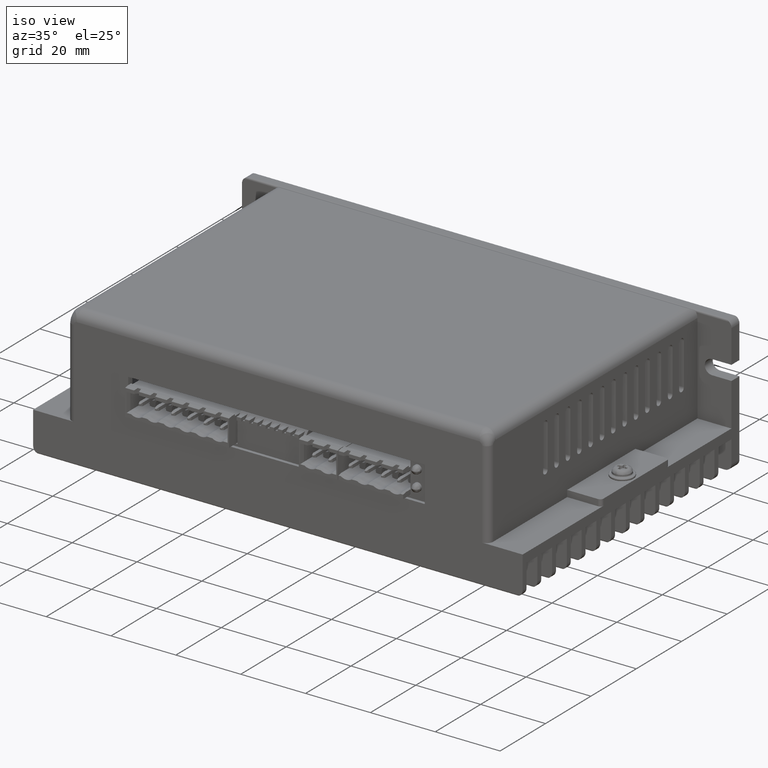
[diagram: clean part render]
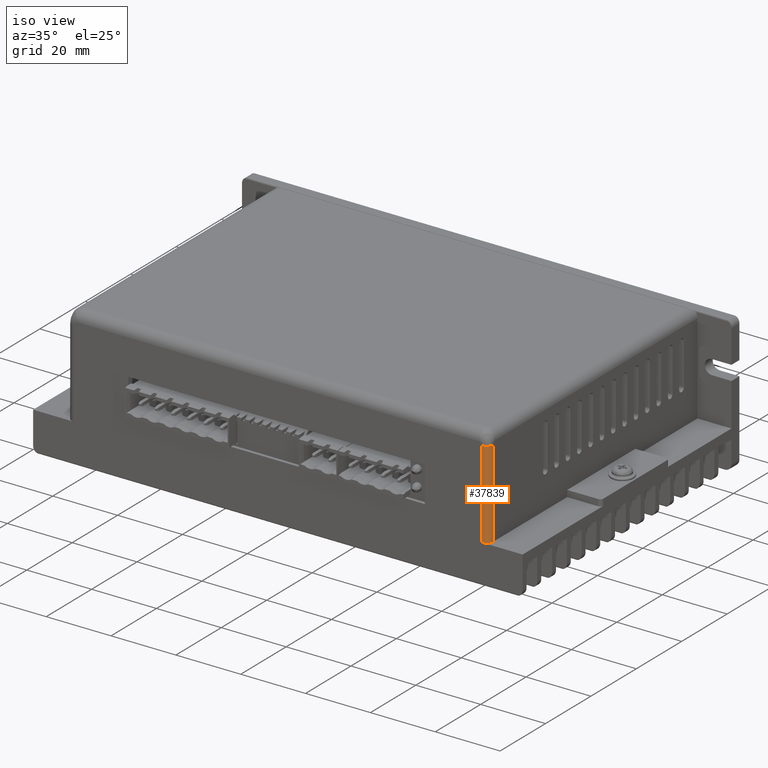
[diagram: same view with one face highlighted and labeled with its STEP entity id]
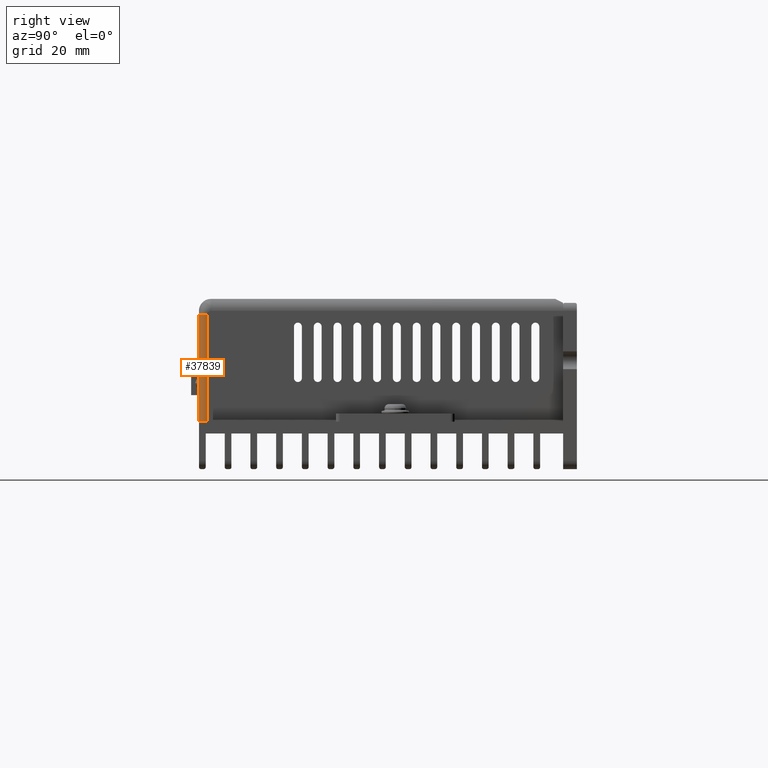
[diagram: same view with one face highlighted and labeled with its STEP entity id]
A machine part, iso view. The second image highlights one B-rep face of the part: STEP entity #37839.
A second angle (right view) of the same face is appended — the face is thin or edge-on in the first view.
In plain terms, the highlighted cylindrical surface (edge-blend (fillet) strip) has radius 2 mm, axis along (-0, 0, 1).
Its self-contained STEP definition (entity closure, byte-faithful):
#867 = VERTEX_POINT ( 'NONE', #36143 ) ;
#1121 = CARTESIAN_POINT ( 'NONE',  ( 2.480314960629923100, -1.751968503937037200, -1.220472440944881500 ) ) ;
#2032 = DIRECTION ( 'NONE',  ( 4.336808689942013300E-016, -0.0000000000000000000, -1.000000000000000000 ) ) ;
#2311 = CARTESIAN_POINT ( 'NONE',  ( 2.559055118110248600, -1.751968503937015400, -0.1574803149606861200 ) ) ;
#3708 = CARTESIAN_POINT ( 'NONE',  ( 2.559055118110248600, -1.751968503937015400, -0.1574803149606861200 ) ) ;
#3760 = EDGE_CURVE ( 'NONE', #10349, #867, #16294, .T. ) ;
#5649 = DIRECTION ( 'NONE',  ( -4.336808689942013300E-016, 0.0000000000000000000, 1.000000000000000000 ) ) ;
#7509 = CARTESIAN_POINT ( 'NONE',  ( 2.528704466139725300, -1.814934397039282200, -0.1574803149606677200 ) ) ;
#10349 = VERTEX_POINT ( 'NONE', #2311 ) ;
#11800 = CARTESIAN_POINT ( 'NONE',  ( 2.480314960629838700, -1.830708661417385100, -0.1574803149606267500 ) ) ;
#14698 = B_SPLINE_CURVE_WITH_KNOTS ( 'NONE', 3,
 ( #3708, #54733, #54541, #33914, #33163, #7509, #37479, #42176, #46107, #11800 ),
 .UNSPECIFIED., .F., .F.,
 ( 4, 2, 2, 2, 4 ),
 ( 0.0000000000000000000, 0.2500000000000000000, 0.5000000000000000000, 0.7500000000000000000, 1.000000000000000000 ),
 .UNSPECIFIED. ) ;
#14977 = ORIENTED_EDGE ( 'NONE', *, *, #33588, .F. ) ;
#15517 = DIRECTION ( 'NONE',  ( -0.0000000000000000000, -0.0000000000000000000, 1.000000000000000000 ) ) ;
#16294 = LINE ( 'NONE', #38312, #24326 ) ;
#21585 = DIRECTION ( 'NONE',  ( 0.0000000000000000000, 0.0000000000000000000, -1.000000000000000000 ) ) ;
#22095 = VERTEX_POINT ( 'NONE', #35696 ) ;
#23407 = DIRECTION ( 'NONE',  ( 1.000000000000000000, 0.0000000000000000000, 0.0000000000000000000 ) ) ;
#24326 = VECTOR ( 'NONE', #21585, 39.37007874015748100 ) ;
#24491 = CIRCLE ( 'NONE', #52631, 0.07874015748031502900 ) ;
#32323 = CARTESIAN_POINT ( 'NONE',  ( 2.480314960629923100, -1.830708661417352000, -1.220472440944881500 ) ) ;
#33163 = CARTESIAN_POINT ( 'NONE',  ( 2.543280853732123400, -1.800358009446897800, -0.1574803149606677800 ) ) ;
#33588 = EDGE_CURVE ( 'NONE', #34353, #22095, #34489, .T. ) ;
#33914 = CARTESIAN_POINT ( 'NONE',  ( 2.549117038453081000, -1.791623541761537600, -0.1574803149606676900 ) ) ;
#34353 = VERTEX_POINT ( 'NONE', #32323 ) ;
#34489 = LINE ( 'NONE', #44061, #53895 ) ;
#35696 = CARTESIAN_POINT ( 'NONE',  ( 2.480314960629838700, -1.830708661417385100, -0.1574803149606267500 ) ) ;
#36143 = CARTESIAN_POINT ( 'NONE',  ( 2.559055118110237900, -1.751968503937026500, -1.220472440944881500 ) ) ;
#36185 = CARTESIAN_POINT ( 'NONE',  ( 2.480314960629923100, -1.751968503937037200, -1.220472440944881100 ) ) ;
#37062 = EDGE_LOOP ( 'NONE', ( #43818, #51456, #41388, #14977 ) ) ;
#37479 = CARTESIAN_POINT ( 'NONE',  ( 2.519969998454362000, -1.820770581760232000, -0.1574803149606677800 ) ) ;
#37839 = ADVANCED_FACE ( 'NONE', ( #45846 ), #43165, .T. ) ;
#38312 = CARTESIAN_POINT ( 'NONE',  ( 2.559055118110237900, -1.751968503937015400, -0.09606299212598430600 ) ) ;
#40673 = DIRECTION ( 'NONE',  ( 1.000000000000000000, 0.0000000000000000000, 0.0000000000000000000 ) ) ;
#41388 = ORIENTED_EDGE ( 'NONE', *, *, #53738, .T. ) ;
#42176 = CARTESIAN_POINT ( 'NONE',  ( 2.500925030264453700, -1.828659265879440700, -0.1574803149606677800 ) ) ;
#43165 = CYLINDRICAL_SURFACE ( 'NONE', #43425, 0.07874015748031502900 ) ;
#43425 = AXIS2_PLACEMENT_3D ( 'NONE', #36185, #5649, #23407 ) ;
#43818 = ORIENTED_EDGE ( 'NONE', *, *, #53293, .F. ) ;
#44061 = CARTESIAN_POINT ( 'NONE',  ( 2.480314960629923100, -1.830708661417352000, -0.09606299212598430600 ) ) ;
#45846 = FACE_OUTER_BOUND ( 'NONE', #37062, .T. ) ;
#46107 = CARTESIAN_POINT ( 'NONE',  ( 2.490622023141634500, -1.830708661417362000, -0.1574803149606677800 ) ) ;
#51456 = ORIENTED_EDGE ( 'NONE', *, *, #3760, .F. ) ;
#52631 = AXIS2_PLACEMENT_3D ( 'NONE', #1121, #2032, #40673 ) ;
#53293 = EDGE_CURVE ( 'NONE', #867, #34353, #24491, .T. ) ;
#53738 = EDGE_CURVE ( 'NONE', #10349, #22095, #14698, .T. ) ;
#53895 = VECTOR ( 'NONE', #15517, 39.37007874015748100 ) ;
#54541 = CARTESIAN_POINT ( 'NONE',  ( 2.557005722572306600, -1.772578573571638200, -0.1574803149606677200 ) ) ;
#54733 = CARTESIAN_POINT ( 'NONE',  ( 2.559055118110237400, -1.762275566448820600, -0.1574803149606677200 ) ) ;